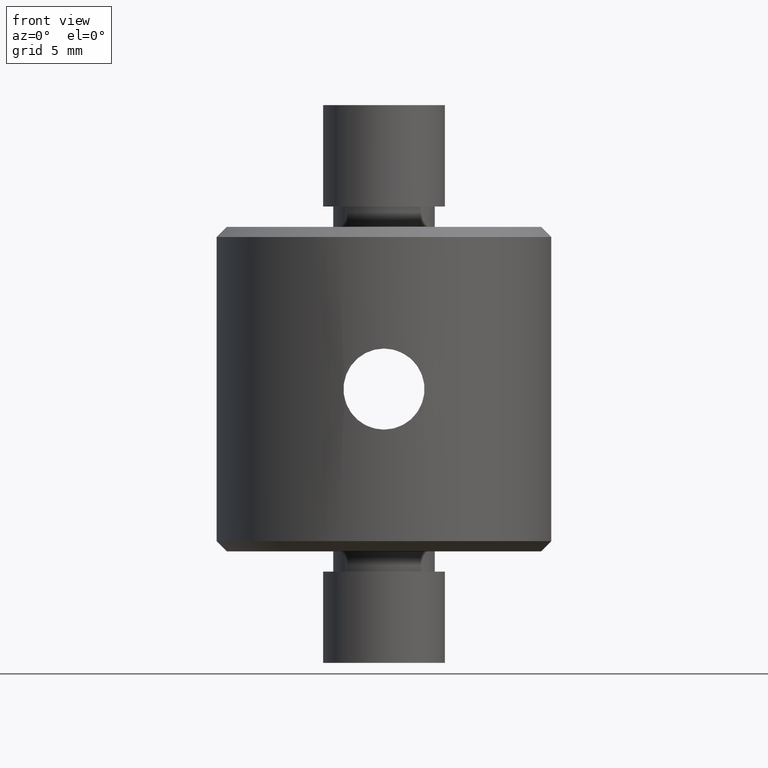
[diagram: clean part render]
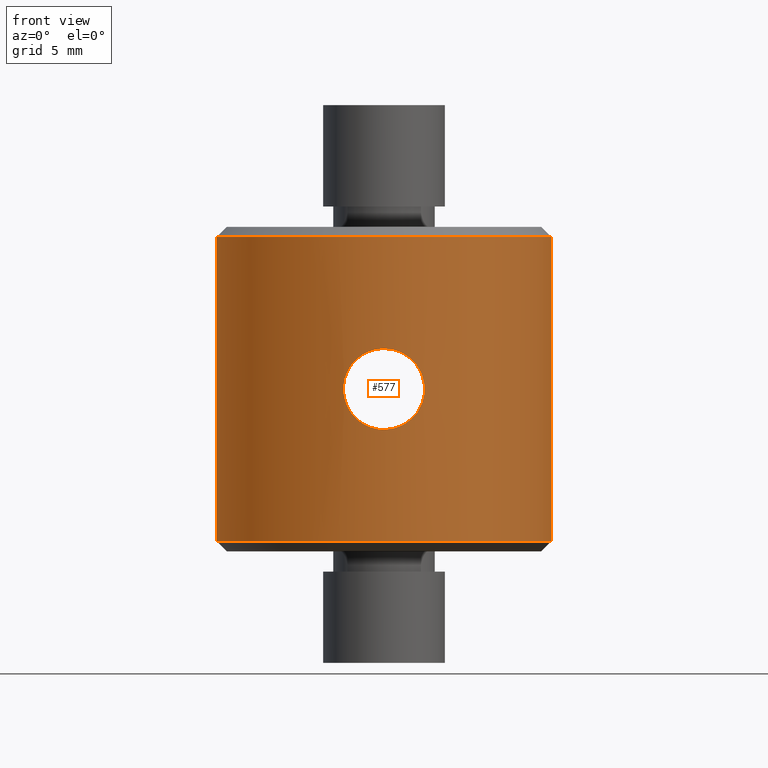
[diagram: same view with one face highlighted and labeled with its STEP entity id]
A machine part, front view. The second image highlights one B-rep face of the part: STEP entity #577.
In plain terms, the highlighted cylindrical surface (partial cylindrical patch) has radius 8.25 mm, axis along (0, 0, 1).
Its self-contained STEP definition (entity closure, byte-faithful):
#22 = EDGE_CURVE ( 'NONE', #470, #651, #70, .T. ) ;
#23 = CARTESIAN_POINT ( 'NONE',  ( -1.746564404702779300, -8.063665092118787600, -1.009254032915539300 ) ) ;
#26 = CARTESIAN_POINT ( 'NONE',  ( -0.8886708092414188400, -8.202897855306337900, 1.796506368153792900 ) ) ;
#30 = ORIENTED_EDGE ( 'NONE', *, *, #22, .F. ) ;
#32 = CARTESIAN_POINT ( 'NONE',  ( -1.003367067051843800, -8.189490218781173800, 1.735021821357147600 ) ) ;
#36 = EDGE_CURVE ( 'NONE', #507, #330, #747, .T. ) ;
#41 = EDGE_LOOP ( 'NONE', ( #239, #736, #539, #241 ) ) ;
#52 = CARTESIAN_POINT ( 'NONE',  ( 1.987161606794385400, -8.007145465530605600, 0.2613861231367247700 ) ) ;
#54 = CARTESIAN_POINT ( 'NONE',  ( 1.936141588103510000, -8.019634998458533600, 0.5181599248321968600 ) ) ;
#62 = CARTESIAN_POINT ( 'NONE',  ( 0.2633971679137698800, -8.246803913401407700, 1.986932804278705100 ) ) ;
#70 = B_SPLINE_CURVE_WITH_KNOTS ( 'NONE', 3,
 ( #746, #455, #93, #99, #695, #166, #217, #633, #690, #456, #219, #101, #517, #404, #52, #54, #334, #761, #342, #526, #282, #703, #280, #62, #537, #601 ),
 .UNSPECIFIED., .F., .F.,
 ( 4, 2, 2, 2, 2, 2, 2, 2, 2, 2, 2, 2, 4 ),
 ( 0.006276366173216329500, 0.007060701512947540300, 0.007452869182813145700, 0.007845036852678751900, 0.008237204522544356400, 0.008629372192409962700, 0.009413707532141171700, 0.009805875202006778000, 0.01019804287187238200, 0.01098237821160359300, 0.01176671355133480600, 0.01215888122120041000, 0.01255104889106601500 ),
 .UNSPECIFIED. ) ;
#78 = CARTESIAN_POINT ( 'NONE',  ( -1.599357376057809300, -8.095676499416024200, -1.229142779217262900 ) ) ;
#80 = CARTESIAN_POINT ( 'NONE',  ( -1.004520203861529100, -8.189343423344858800, -1.734320818487681500 ) ) ;
#89 = CARTESIAN_POINT ( 'NONE',  ( -1.999945528447225200, -8.003918908033524500, 0.1318261355252158300 ) ) ;
#90 = CARTESIAN_POINT ( 'NONE',  ( -1.598332908652791100, -8.095838505945714300, 1.229985968183118200 ) ) ;
#92 = CARTESIAN_POINT ( 'NONE',  ( -0.2635999258944435300, -8.246795264675656200, -1.986896621537046000 ) ) ;
#93 = CARTESIAN_POINT ( 'NONE',  ( 0.5256441293576987700, -8.236790558271446000, -1.947229364106093600 ) ) ;
#99 = CARTESIAN_POINT ( 'NONE',  ( 0.8869395704203337800, -8.203076758833363500, -1.797314436934732900 ) ) ;
#101 = CARTESIAN_POINT ( 'NONE',  ( 1.947787641228585300, -8.017442781952535600, -0.5248544217563377900 ) ) ;
#107 = CARTESIAN_POINT ( 'NONE',  ( 8.250000000000000000, 0.0000000000000000000, -13.50000000000000000 ) ) ;
#111 = DIRECTION ( 'NONE',  ( -1.000000000000000000, 0.0000000000000000000, 0.0000000000000000000 ) ) ;
#117 = FACE_BOUND ( 'NONE', #599, .T. ) ;
#125 = DIRECTION ( 'NONE',  ( 0.0000000000000000000, 0.0000000000000000000, 1.000000000000000000 ) ) ;
#142 = DIRECTION ( 'NONE',  ( 0.0000000000000000000, 0.0000000000000000000, 1.000000000000000000 ) ) ;
#149 = CARTESIAN_POINT ( 'NONE',  ( -0.2630402404011860700, -8.246803709826968600, 1.986929239511523200 ) ) ;
#150 = ORIENTED_EDGE ( 'NONE', *, *, #343, .F. ) ;
#155 = CARTESIAN_POINT ( 'NONE',  ( -0.1326771134377834100, -8.250000000000000000, 2.000000000000000000 ) ) ;
#166 = CARTESIAN_POINT ( 'NONE',  ( 1.221030223150371400, -8.159876887627760300, -1.589387696022922700 ) ) ;
#169 = AXIS2_PLACEMENT_3D ( 'NONE', #704, #641, #111 ) ;
#217 = CARTESIAN_POINT ( 'NONE',  ( 1.321366810000156500, -8.144031804710421000, -1.506980075174842300 ) ) ;
#219 = CARTESIAN_POINT ( 'NONE',  ( 1.796101587691693500, -8.052279829401907600, -0.8895820937560504600 ) ) ;
#227 = AXIS2_PLACEMENT_3D ( 'NONE', #600, #125, #596 ) ;
#239 = ORIENTED_EDGE ( 'NONE', *, *, #255, .F. ) ;
#241 = ORIENTED_EDGE ( 'NONE', *, *, #749, .T. ) ;
#255 = EDGE_CURVE ( 'NONE', #490, #477, #409, .T. ) ;
#264 = CARTESIAN_POINT ( 'NONE',  ( -0.5193570997923324700, -8.234635984631101000, 1.935806336850731900 ) ) ;
#269 = CARTESIAN_POINT ( 'NONE',  ( 0.0000000000000000000, 0.0000000000000000000, 7.499999999999998200 ) ) ;
#279 = CARTESIAN_POINT ( 'NONE',  ( 2.449308039802920400E-016, -8.250000000000000000, -2.000000000000000000 ) ) ;
#280 = CARTESIAN_POINT ( 'NONE',  ( 0.5211970916093433500, -8.234531343425429000, 1.935363952460052600 ) ) ;
#282 = CARTESIAN_POINT ( 'NONE',  ( 1.009530896751481100, -8.191567199673246000, 1.746084158701253200 ) ) ;
#285 = CARTESIAN_POINT ( 'NONE',  ( 8.250000000000000000, 0.0000000000000000000, -7.499999999999996400 ) ) ;
#310 = CARTESIAN_POINT ( 'NONE',  ( -1.747129177818576000, -8.063531605375777300, 1.007640096485658400 ) ) ;
#330 = VERTEX_POINT ( 'NONE', #506 ) ;
#334 = CARTESIAN_POINT ( 'NONE',  ( 1.897368781442408500, -8.029017936759030900, 0.6457941285481596500 ) ) ;
#337 = CARTESIAN_POINT ( 'NONE',  ( -8.250000000000000000, 1.010333609296566500E-015, -7.499999999999996400 ) ) ;
#342 = CARTESIAN_POINT ( 'NONE',  ( 1.598501874800889500, -8.095799503385800100, 1.229709723365947300 ) ) ;
#343 = EDGE_CURVE ( 'NONE', #651, #470, #593, .T. ) ;
#344 = CARTESIAN_POINT ( 'NONE',  ( -8.250000000000000000, 1.010333609296566500E-015, 7.499999999999998200 ) ) ;
#371 = CARTESIAN_POINT ( 'NONE',  ( -2.000054127914221900, -8.003891771416318700, -0.1301680920073833000 ) ) ;
#378 = CYLINDRICAL_SURFACE ( 'NONE', #227, 8.250000000000000000 ) ;
#382 = CARTESIAN_POINT ( 'NONE',  ( -1.322777905114126900, -8.143798310005646400, 1.505703159970232600 ) ) ;
#396 = DIRECTION ( 'NONE',  ( 0.0000000000000000000, 0.0000000000000000000, 1.000000000000000000 ) ) ;
#398 = VECTOR ( 'NONE', #396, 1000.000000000000000 ) ;
#404 = CARTESIAN_POINT ( 'NONE',  ( 2.000045191572576500, -8.003894004411135300, 0.1312489192629629500 ) ) ;
#409 = LINE ( 'NONE', #725, #522 ) ;
#437 = CARTESIAN_POINT ( 'NONE',  ( -1.220760633113353400, -8.159911152830549200, -1.589551200196607200 ) ) ;
#444 = EDGE_CURVE ( 'NONE', #490, #507, #708, .T. ) ;
#445 = CARTESIAN_POINT ( 'NONE',  ( -1.987145896334996400, -8.007150238837752500, 0.2619363400058078400 ) ) ;
#453 = CARTESIAN_POINT ( 'NONE',  ( -0.5211225312989512500, -8.234533888799106200, -1.935374489079428200 ) ) ;
#455 = CARTESIAN_POINT ( 'NONE',  ( 0.2615629039225235700, -8.250000000000000000, -2.000000000000000400 ) ) ;
#456 = CARTESIAN_POINT ( 'NONE',  ( 1.734485429178346700, -8.065947410585693000, -1.004220271036169600 ) ) ;
#470 = VERTEX_POINT ( 'NONE', #279 ) ;
#473 = CARTESIAN_POINT ( 'NONE',  ( -0.1308165397492921700, -8.250000000000001800, -2.000000000000000900 ) ) ;
#477 = VERTEX_POINT ( 'NONE', #344 ) ;
#490 = VERTEX_POINT ( 'NONE', #337 ) ;
#502 = CARTESIAN_POINT ( 'NONE',  ( -0.8873435543799543800, -8.203037833527066200, -1.797140462901066500 ) ) ;
#506 = CARTESIAN_POINT ( 'NONE',  ( 8.250000000000000000, 0.0000000000000000000, 7.499999999999998200 ) ) ;
#507 = VERTEX_POINT ( 'NONE', #285 ) ;
#509 = DIRECTION ( 'NONE',  ( 1.000000000000000000, 0.0000000000000000000, 0.0000000000000000000 ) ) ;
#510 = AXIS2_PLACEMENT_3D ( 'NONE', #269, #733, #509 ) ;
#515 = FACE_OUTER_BOUND ( 'NONE', #41, .T. ) ;
#517 = CARTESIAN_POINT ( 'NONE',  ( 1.999909263040937000, -8.003927969961225100, -0.2645583643814337600 ) ) ;
#522 = VECTOR ( 'NONE', #142, 1000.000000000000000 ) ;
#526 = CARTESIAN_POINT ( 'NONE',  ( 1.231581452474026900, -8.159680445255538900, 1.597060228483784700 ) ) ;
#531 = CARTESIAN_POINT ( 'NONE',  ( 2.449308039802920400E-016, -8.250000000000000000, -2.000000000000000000 ) ) ;
#537 = CARTESIAN_POINT ( 'NONE',  ( 0.1326415266041785500, -8.250000000000000000, 1.999999999999999600 ) ) ;
#539 = ORIENTED_EDGE ( 'NONE', *, *, #36, .T. ) ;
#558 = CARTESIAN_POINT ( 'NONE',  ( -1.321223466088915300, -8.144060661153183400, -1.507167060968729300 ) ) ;
#570 = CARTESIAN_POINT ( 'NONE',  ( -1.986918607695745900, -8.007206264713762100, -0.2632750207901880000 ) ) ;
#577 = ADVANCED_FACE ( 'NONE', ( #515, #117 ), #378, .T. ) ;
#593 = B_SPLINE_CURVE_WITH_KNOTS ( 'NONE', 3,
 ( #628, #155, #149, #264, #672, #26, #32, #680, #382, #90, #310, #677, #730, #445, #89, #371, #570, #625, #687, #23, #78, #558, #437, #80, #502, #696, #453, #92, #473, #531 ),
 .UNSPECIFIED., .F., .F.,
 ( 4, 2, 2, 2, 2, 2, 2, 2, 2, 2, 2, 2, 2, 2, 4 ),
 ( 6.593988636400875700E-020, 0.0003922728858260206500, 0.0007845457716520413000, 0.001176818657478061800, 0.001569091543304082400, 0.002353637314956123700, 0.002745910200782144200, 0.003138183086608164800, 0.003530455972434185300, 0.003922728858260206300, 0.004707274629912247400, 0.005099547515738267500, 0.005491820401564288500, 0.005884093287390308600, 0.006276366173216329500 ),
 .UNSPECIFIED. ) ;
#596 = DIRECTION ( 'NONE',  ( 1.000000000000000000, 0.0000000000000000000, 0.0000000000000000000 ) ) ;
#599 = EDGE_LOOP ( 'NONE', ( #150, #30 ) ) ;
#600 = CARTESIAN_POINT ( 'NONE',  ( 0.0000000000000000000, 0.0000000000000000000, -13.50000000000000000 ) ) ;
#601 = CARTESIAN_POINT ( 'NONE',  ( 6.789005360349728400E-017, -8.250000000000000000, 2.000000000000000000 ) ) ;
#625 = CARTESIAN_POINT ( 'NONE',  ( -1.935604370650708500, -8.019765173594350900, -0.5201874762982557900 ) ) ;
#628 = CARTESIAN_POINT ( 'NONE',  ( 6.789005360349728400E-017, -8.250000000000000000, 2.000000000000000000 ) ) ;
#633 = CARTESIAN_POINT ( 'NONE',  ( 1.505833281658624000, -8.111949852566528600, -1.322673550575946600 ) ) ;
#641 = DIRECTION ( 'NONE',  ( -0.0000000000000000000, -0.0000000000000000000, 1.000000000000000000 ) ) ;
#651 = VERTEX_POINT ( 'NONE', #667 ) ;
#667 = CARTESIAN_POINT ( 'NONE',  ( 6.789005360349728400E-017, -8.250000000000000000, 2.000000000000000000 ) ) ;
#672 = CARTESIAN_POINT ( 'NONE',  ( -0.6466695324974537400, -8.225514424492038400, 1.897100275092082700 ) ) ;
#677 = CARTESIAN_POINT ( 'NONE',  ( -1.896948438408481600, -8.029116526787948500, 0.6469438569360429500 ) ) ;
#680 = CARTESIAN_POINT ( 'NONE',  ( -1.220416603986454100, -8.159968065346266300, 1.589852038569584200 ) ) ;
#687 = CARTESIAN_POINT ( 'NONE',  ( -1.897658194821841200, -8.028951604041024500, -0.6451074378026309100 ) ) ;
#690 = CARTESIAN_POINT ( 'NONE',  ( 1.589900384508794200, -8.095687994340249100, -1.220292925543182900 ) ) ;
#695 = CARTESIAN_POINT ( 'NONE',  ( 1.003891274059350200, -8.189426593904842700, -1.734724866940920800 ) ) ;
#696 = CARTESIAN_POINT ( 'NONE',  ( -0.6458375426091315100, -8.225576098385614500, -1.897362984632226000 ) ) ;
#703 = CARTESIAN_POINT ( 'NONE',  ( 0.6485373955294846400, -8.225357481663911200, 1.896415006476869200 ) ) ;
#704 = CARTESIAN_POINT ( 'NONE',  ( 0.0000000000000000000, 0.0000000000000000000, -7.499999999999996400 ) ) ;
#708 = CIRCLE ( 'NONE', #169, 8.250000000000000000 ) ;
#725 = CARTESIAN_POINT ( 'NONE',  ( -8.250000000000000000, 1.010333609296566500E-015, -13.50000000000000000 ) ) ;
#730 = CARTESIAN_POINT ( 'NONE',  ( -1.935610163547384600, -8.019764152106503700, 0.5203582941673174900 ) ) ;
#733 = DIRECTION ( 'NONE',  ( -0.0000000000000000000, -0.0000000000000000000, -1.000000000000000000 ) ) ;
#736 = ORIENTED_EDGE ( 'NONE', *, *, #444, .T. ) ;
#742 = CIRCLE ( 'NONE', #510, 8.250000000000000000 ) ;
#746 = CARTESIAN_POINT ( 'NONE',  ( 2.449308039802920400E-016, -8.250000000000000000, -2.000000000000000000 ) ) ;
#747 = LINE ( 'NONE', #107, #398 ) ;
#749 = EDGE_CURVE ( 'NONE', #330, #477, #742, .T. ) ;
#761 = CARTESIAN_POINT ( 'NONE',  ( 1.747216188800824900, -8.063515664767722400, 1.007704811256960700 ) ) ;